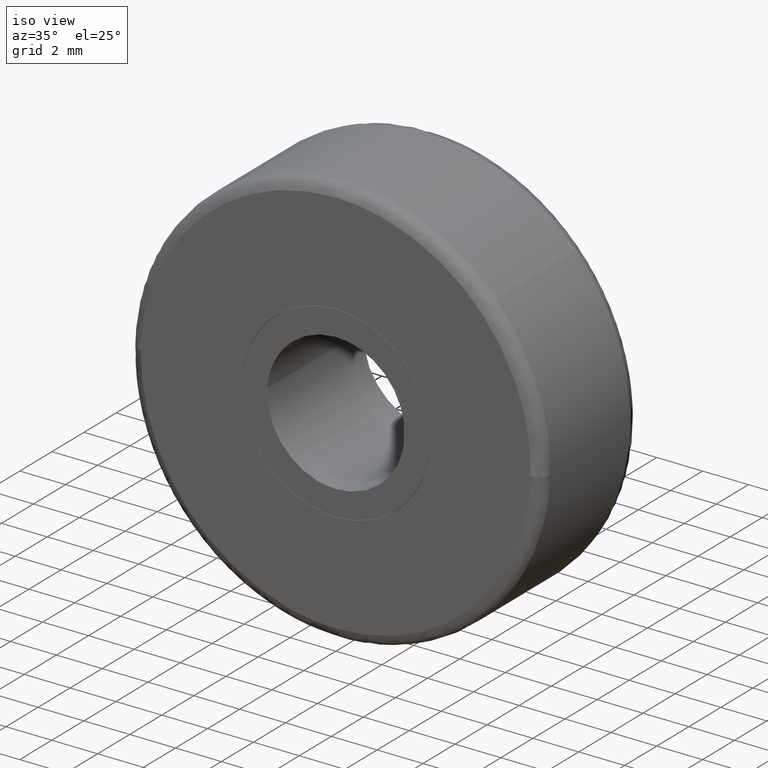
[diagram: clean part render]
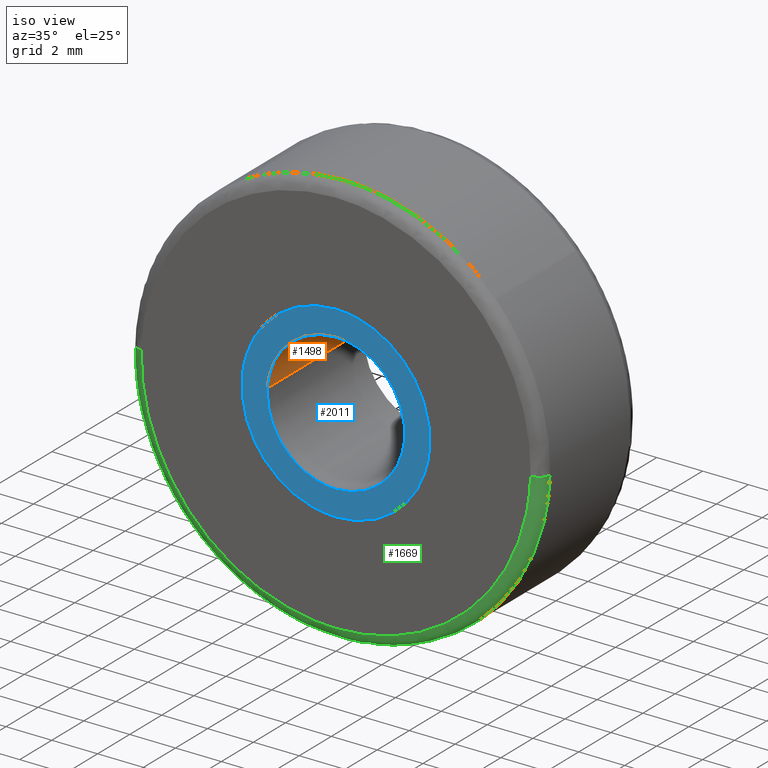
[diagram: same view with three faces highlighted in distinct colors, each labeled with its STEP entity id]
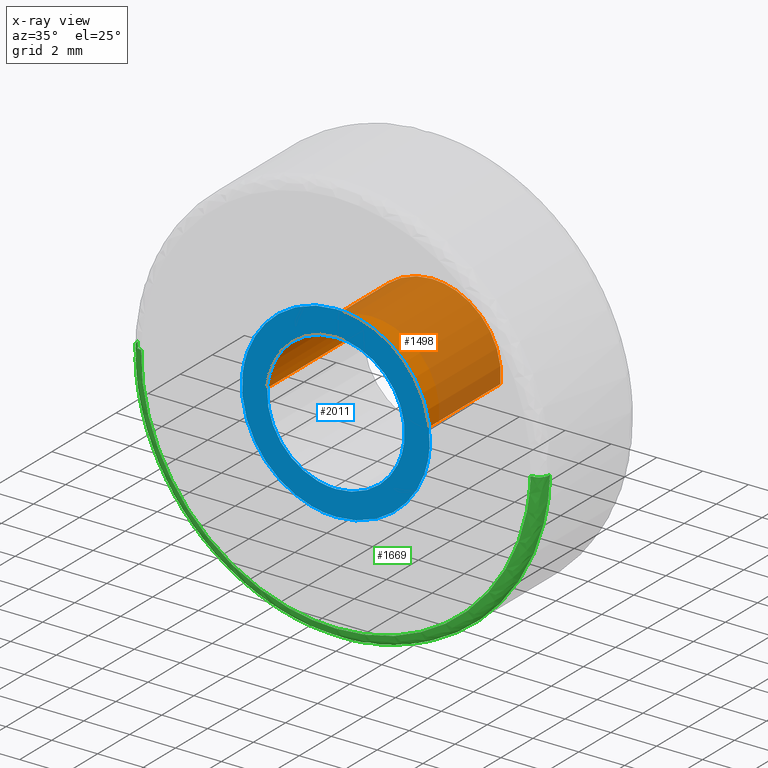
[diagram: x-ray of the same camera — body ghosted, the three highlighted faces saturated]
A machine part, iso view with three faces highlighted in distinct colors.
The next image is the same camera in x-ray (body ghosted, the three faces saturated) — at least one of them is partly hidden behind the body in this view.
Their STEP definitions:

[orange] entity #1498 — the highlighted face is a freeform B-spline surface patch.
#1396=CARTESIAN_POINT('',(2.979028579091000,6.150000000000001,-0.354102703970276));
#1397=CARTESIAN_POINT('',(2.989162846345817,6.150000000000001,-0.268844185913933));
#1398=CARTESIAN_POINT('',(2.994404395265600,6.150000000000001,-0.183145618604571));
#1399=CARTESIAN_POINT('',(3.177550013870171,6.150000000000002,2.811258776661029));
#1400=CARTESIAN_POINT('',(0.183145618604571,6.150000000000001,2.994404395265600));
#1401=CARTESIAN_POINT('',(-2.811258776661029,6.150000000000002,3.177550013870171));
#1402=CARTESIAN_POINT('',(-2.994404395265600,6.150000000000001,0.183145618604571));
#1403=CARTESIAN_POINT('',(2.979028579091000,-0.153750000000001,-0.354102703970276));
#1404=CARTESIAN_POINT('',(2.989162846345817,-0.153750000000001,-0.268844185913933));
#1405=CARTESIAN_POINT('',(2.994404395265600,-0.153750000000001,-0.183145618604571));
#1406=CARTESIAN_POINT('',(3.177550013870171,-0.153750000000001,2.811258776661029));
#1407=CARTESIAN_POINT('',(0.183145618604571,-0.153750000000001,2.994404395265600));
#1408=CARTESIAN_POINT('',(-2.811258776661029,-0.153750000000001,3.177550013870171));
#1409=CARTESIAN_POINT('',(-2.994404395265600,-0.153750000000001,0.183145618604571));
#1417=(BOUNDED_SURFACE()B_SPLINE_SURFACE(2,1,((#1396,#1403),(#1397,#1404),(#1398,#1405),(#1399,#1406),(#1400,#1407),(#1401,#1408),(#1402,#1409)),.UNSPECIFIED.,.F.,.F.,.U.)B_SPLINE_SURFACE_WITH_KNOTS((3,2,2,3),(2,2),(0.0,0.198822509939086,5.169385258416226,10.139948006893370),(0.0,6.303750000000004),.UNSPECIFIED.)GEOMETRIC_REPRESENTATION_ITEM()RATIONAL_B_SPLINE_SURFACE(((0.977505800795127,0.977505800795127),(0.988284271247462,0.988284271247462),(1.0,1.0),(0.707106781186548,0.707106781186548),(1.0,1.0),(0.707106781186548,0.707106781186548),(1.0,1.0)))REPRESENTATION_ITEM('')SURFACE());
#1418=CARTESIAN_POINT('',(2.979028579088887,5.999999999999999,-0.354102703988044));
#1419=VERTEX_POINT('',#1418);
#1420=CARTESIAN_POINT('',(0.0,6.0,3.0));
#1421=VERTEX_POINT('',#1420);
#1422=CARTESIAN_POINT('',(2.979028579088887,5.999999999999999,-0.354102703988044));
#1423=CARTESIAN_POINT('',(3.000000000000000,6.000000000000001,-0.177672358973687));
#1424=CARTESIAN_POINT('',(3.0,6.0,-1.775281E-016));
#1425=CARTESIAN_POINT('',(3.0,6.0,3.0));
#1426=CARTESIAN_POINT('',(0.0,6.0,3.0));
#1434=(BOUNDED_CURVE()B_SPLINE_CURVE(2,(#1422,#1423,#1424,#1425,#1426),.UNSPECIFIED.,.F.,.U.)B_SPLINE_CURVE_WITH_KNOTS((3,2,3),(0.229562473513628,0.250000000000000,0.500000000000000),.UNSPECIFIED.)CURVE()GEOMETRIC_REPRESENTATION_ITEM()RATIONAL_B_SPLINE_CURVE((0.956026754183934,0.976055948331286,1.0,0.707106781186548,1.0))REPRESENTATION_ITEM(''));
#1435=EDGE_CURVE('',#1419,#1421,#1434,.T.);
#1436=ORIENTED_EDGE('',*,*,#1435,.F.);
#1437=CARTESIAN_POINT('',(2.979028579088887,-5.026907E-016,-0.354102703988044));
#1438=VERTEX_POINT('',#1437);
#1439=CARTESIAN_POINT('',(2.979028579088887,5.999999999999999,-0.354102703988044));
#1440=CARTESIAN_POINT('',(2.979028579088887,-5.026907E-016,-0.354102703988044));
#1441=QUASI_UNIFORM_CURVE('',1,(#1439,#1440),.UNSPECIFIED.,.F.,.U.);
#1442=EDGE_CURVE('',#1419,#1438,#1441,.T.);
#1443=ORIENTED_EDGE('',*,*,#1442,.T.);
#1444=CARTESIAN_POINT('',(0.0,-5.510729E-016,3.0));
#1445=VERTEX_POINT('',#1444);
#1446=CARTESIAN_POINT('',(2.979028579088887,-5.026907E-016,-0.354102703988044));
#1447=CARTESIAN_POINT('',(3.000000000000000,-5.510729E-016,-0.177672358973687));
#1448=CARTESIAN_POINT('',(3.0,-5.510729E-016,-1.775281E-016));
#1449=CARTESIAN_POINT('',(3.0,-5.510729E-016,3.0));
#1450=CARTESIAN_POINT('',(0.0,-5.510729E-016,3.0));
#1458=(BOUNDED_CURVE()B_SPLINE_CURVE(2,(#1446,#1447,#1448,#1449,#1450),.UNSPECIFIED.,.F.,.U.)B_SPLINE_CURVE_WITH_KNOTS((3,2,3),(0.229562473513628,0.250000000000000,0.500000000000000),.UNSPECIFIED.)CURVE()GEOMETRIC_REPRESENTATION_ITEM()RATIONAL_B_SPLINE_CURVE((0.956026754183934,0.976055948331286,1.0,0.707106781186548,1.0))REPRESENTATION_ITEM(''));
#1459=EDGE_CURVE('',#1438,#1445,#1458,.T.);
#1460=ORIENTED_EDGE('',*,*,#1459,.T.);
#1461=CARTESIAN_POINT('',(-2.994404430591240,-5.253366E-016,0.183145041033635));
#1462=VERTEX_POINT('',#1461);
#1463=CARTESIAN_POINT('',(0.0,-5.510729E-016,3.0));
#1464=CARTESIAN_POINT('',(-2.822119291431257,-5.510729E-016,3.000000000000001));
#1465=CARTESIAN_POINT('',(-2.994404430591240,-5.253366E-016,0.183145041033635));
#1473=(BOUNDED_CURVE()B_SPLINE_CURVE(2,(#1463,#1464,#1465),.UNSPECIFIED.,.F.,.U.)B_SPLINE_CURVE_WITH_KNOTS((3,3),(0.500000000000000,0.739333028804800),.UNSPECIFIED.)CURVE()GEOMETRIC_REPRESENTATION_ITEM()RATIONAL_B_SPLINE_CURVE((1.0,0.719603915299957,0.976072184330063))REPRESENTATION_ITEM(''));
#1474=EDGE_CURVE('',#1445,#1462,#1473,.T.);
#1475=ORIENTED_EDGE('',*,*,#1474,.T.);
#1476=CARTESIAN_POINT('',(-2.994404431022851,6.000000000000001,0.183145033976828));
#1477=VERTEX_POINT('',#1476);
#1478=CARTESIAN_POINT('',(-2.994404431022851,6.000000000000001,0.183145033976828));
#1479=CARTESIAN_POINT('',(-2.994404430591240,-5.253366E-016,0.183145041033635));
#1480=QUASI_UNIFORM_CURVE('',1,(#1478,#1479),.UNSPECIFIED.,.F.,.U.);
#1481=EDGE_CURVE('',#1477,#1462,#1480,.T.);
#1482=ORIENTED_EDGE('',*,*,#1481,.F.);
#1483=CARTESIAN_POINT('',(0.0,6.0,3.0));
#1484=CARTESIAN_POINT('',(-2.822119304757682,6.0,3.0));
#1485=CARTESIAN_POINT('',(-2.994404431022851,6.000000000000001,0.183145033976828));
#1493=(BOUNDED_CURVE()B_SPLINE_CURVE(2,(#1483,#1484,#1485),.UNSPECIFIED.,.F.,.U.)B_SPLINE_CURVE_WITH_KNOTS((3,3),(0.500000000000000,0.739333029618070),.UNSPECIFIED.)CURVE()GEOMETRIC_REPRESENTATION_ITEM()RATIONAL_B_SPLINE_CURVE((1.0,0.719603914347153,0.976072186073055))REPRESENTATION_ITEM(''));
#1494=EDGE_CURVE('',#1421,#1477,#1493,.T.);
#1495=ORIENTED_EDGE('',*,*,#1494,.F.);
#1496=EDGE_LOOP('',(#1436,#1443,#1460,#1475,#1482,#1495));
#1497=FACE_OUTER_BOUND('',#1496,.T.);
#1498=ADVANCED_FACE('',(#1497),#1417,.F.);

[blue] entity #2011 — the highlighted face is a freeform B-spline surface patch.
#654=CARTESIAN_POINT('',(4.092352705097584,-1.318390E-016,-0.250298495960752));
#655=VERTEX_POINT('',#654);
#661=CARTESIAN_POINT('',(0.0,0.0,-4.100000000000001));
#662=VERTEX_POINT('',#661);
#663=CARTESIAN_POINT('',(0.0,0.0,-4.100000000000001));
#664=CARTESIAN_POINT('',(3.856895849003346,0.0,-4.100000000000001));
#665=CARTESIAN_POINT('',(4.092352705097584,-1.318390E-016,-0.250298495960752));
#673=(BOUNDED_CURVE()B_SPLINE_CURVE(2,(#663,#664,#665),.UNSPECIFIED.,.F.,.U.)B_SPLINE_CURVE_WITH_KNOTS((3,3),(0.500000000000000,0.739333005765563),.UNSPECIFIED.)CURVE()GEOMETRIC_REPRESENTATION_ITEM()RATIONAL_B_SPLINE_CURVE((1.0,0.719603942292103,0.976072134952568))REPRESENTATION_ITEM(''));
#674=EDGE_CURVE('',#662,#655,#673,.T.);
#676=CARTESIAN_POINT('',(-4.071339863821313,4.259142E-017,0.483933583472828));
#677=VERTEX_POINT('',#676);
#678=CARTESIAN_POINT('',(-4.071339863821313,4.259142E-017,0.483933583472828));
#679=CARTESIAN_POINT('',(-4.100000000000001,0.0,0.242815465432385));
#680=CARTESIAN_POINT('',(-4.100000000000001,0.0,0.0));
#681=CARTESIAN_POINT('',(-4.100000000000001,0.0,-4.100000000000001));
#682=CARTESIAN_POINT('',(0.0,0.0,-4.100000000000001));
#690=(BOUNDED_CURVE()B_SPLINE_CURVE(2,(#678,#679,#680,#681,#682),.UNSPECIFIED.,.F.,.U.)B_SPLINE_CURVE_WITH_KNOTS((3,2,3),(0.229562754899454,0.250000000000000,0.500000000000000),.UNSPECIFIED.)CURVE()GEOMETRIC_REPRESENTATION_ITEM()RATIONAL_B_SPLINE_CURVE((0.956027305712411,0.976056277995287,1.0,0.707106781186547,1.0))REPRESENTATION_ITEM(''));
#691=EDGE_CURVE('',#677,#662,#690,.T.);
#739=CARTESIAN_POINT('',(0.0,0.0,4.100000000000001));
#740=VERTEX_POINT('',#739);
#741=CARTESIAN_POINT('',(0.0,0.0,4.100000000000001));
#742=CARTESIAN_POINT('',(-3.641521662065990,0.0,4.100000000000001));
#743=CARTESIAN_POINT('',(-4.071339863821313,4.259142E-017,0.483933583472828));
#751=(BOUNDED_CURVE()B_SPLINE_CURVE(2,(#741,#742,#743),.UNSPECIFIED.,.F.,.U.)B_SPLINE_CURVE_WITH_KNOTS((3,3),(0.0,0.229562754899454),.UNSPECIFIED.)CURVE()GEOMETRIC_REPRESENTATION_ITEM()RATIONAL_B_SPLINE_CURVE((1.0,0.731050503191261,0.956027305712411))REPRESENTATION_ITEM(''));
#752=EDGE_CURVE('',#740,#677,#751,.T.);
#754=CARTESIAN_POINT('',(4.092352705097584,-1.318390E-016,-0.250298495960752));
#755=CARTESIAN_POINT('',(4.100000000000001,0.0,-0.125265811944874));
#756=CARTESIAN_POINT('',(4.100000000000001,0.0,0.0));
#757=CARTESIAN_POINT('',(4.100000000000001,0.0,4.100000000000001));
#758=CARTESIAN_POINT('',(0.0,0.0,4.100000000000001));
#766=(BOUNDED_CURVE()B_SPLINE_CURVE(2,(#754,#755,#756,#757,#758),.UNSPECIFIED.,.F.,.U.)B_SPLINE_CURVE_WITH_KNOTS((3,2,3),(0.739333005765564,0.750000000000000,1.0),.UNSPECIFIED.)CURVE()GEOMETRIC_REPRESENTATION_ITEM()RATIONAL_B_SPLINE_CURVE((0.976072134952570,0.987502838894446,1.0,0.707106781186547,1.0))REPRESENTATION_ITEM(''));
#767=EDGE_CURVE('',#655,#740,#766,.T.);
#1437=CARTESIAN_POINT('',(2.979028579088887,-5.026907E-016,-0.354102703988044));
#1438=VERTEX_POINT('',#1437);
#1444=CARTESIAN_POINT('',(0.0,-5.510729E-016,3.0));
#1445=VERTEX_POINT('',#1444);
#1446=CARTESIAN_POINT('',(2.979028579088887,-5.026907E-016,-0.354102703988044));
#1447=CARTESIAN_POINT('',(3.000000000000000,-5.510729E-016,-0.177672358973687));
#1448=CARTESIAN_POINT('',(3.0,-5.510729E-016,-1.775281E-016));
#1449=CARTESIAN_POINT('',(3.0,-5.510729E-016,3.0));
#1450=CARTESIAN_POINT('',(0.0,-5.510729E-016,3.0));
#1458=(BOUNDED_CURVE()B_SPLINE_CURVE(2,(#1446,#1447,#1448,#1449,#1450),.UNSPECIFIED.,.F.,.U.)B_SPLINE_CURVE_WITH_KNOTS((3,2,3),(0.229562473513628,0.250000000000000,0.500000000000000),.UNSPECIFIED.)CURVE()GEOMETRIC_REPRESENTATION_ITEM()RATIONAL_B_SPLINE_CURVE((0.956026754183934,0.976055948331286,1.0,0.707106781186548,1.0))REPRESENTATION_ITEM(''));
#1459=EDGE_CURVE('',#1438,#1445,#1458,.T.);
#1461=CARTESIAN_POINT('',(-2.994404430591240,-5.253366E-016,0.183145041033635));
#1462=VERTEX_POINT('',#1461);
#1463=CARTESIAN_POINT('',(0.0,-5.510729E-016,3.0));
#1464=CARTESIAN_POINT('',(-2.822119291431257,-5.510729E-016,3.000000000000001));
#1465=CARTESIAN_POINT('',(-2.994404430591240,-5.253366E-016,0.183145041033635));
#1473=(BOUNDED_CURVE()B_SPLINE_CURVE(2,(#1463,#1464,#1465),.UNSPECIFIED.,.F.,.U.)B_SPLINE_CURVE_WITH_KNOTS((3,3),(0.500000000000000,0.739333028804800),.UNSPECIFIED.)CURVE()GEOMETRIC_REPRESENTATION_ITEM()RATIONAL_B_SPLINE_CURVE((1.0,0.719603915299957,0.976072184330063))REPRESENTATION_ITEM(''));
#1474=EDGE_CURVE('',#1445,#1462,#1473,.T.);
#1548=CARTESIAN_POINT('',(0.0,-5.510729E-016,-3.0));
#1549=VERTEX_POINT('',#1548);
#1550=CARTESIAN_POINT('',(-2.994404430591241,-5.253366E-016,0.183145041033635));
#1551=CARTESIAN_POINT('',(-3.0,-5.510729E-016,0.091657710705388));
#1552=CARTESIAN_POINT('',(-3.0,-5.510729E-016,-1.775281E-016));
#1553=CARTESIAN_POINT('',(-3.0,-5.510729E-016,-3.0));
#1554=CARTESIAN_POINT('',(0.0,-5.510729E-016,-3.0));
#1562=(BOUNDED_CURVE()B_SPLINE_CURVE(2,(#1550,#1551,#1552,#1553,#1554),.UNSPECIFIED.,.F.,.U.)B_SPLINE_CURVE_WITH_KNOTS((3,2,3),(0.739333028804799,0.750000000000000,1.0),.UNSPECIFIED.)CURVE()GEOMETRIC_REPRESENTATION_ITEM()RATIONAL_B_SPLINE_CURVE((0.976072184330061,0.987502865886589,1.0,0.707106781186548,1.0))REPRESENTATION_ITEM(''));
#1563=EDGE_CURVE('',#1462,#1549,#1562,.T.);
#1565=CARTESIAN_POINT('',(0.0,-5.510729E-016,-3.0));
#1566=CARTESIAN_POINT('',(2.664523577822093,-5.510729E-016,-2.999999999999999));
#1567=CARTESIAN_POINT('',(2.979028579088887,-5.026907E-016,-0.354102703988044));
#1575=(BOUNDED_CURVE()B_SPLINE_CURVE(2,(#1565,#1566,#1567),.UNSPECIFIED.,.F.,.U.)B_SPLINE_CURVE_WITH_KNOTS((3,3),(0.0,0.229562473513628),.UNSPECIFIED.)CURVE()GEOMETRIC_REPRESENTATION_ITEM()RATIONAL_B_SPLINE_CURVE((1.0,0.731050832855262,0.956026754183934))REPRESENTATION_ITEM(''));
#1576=EDGE_CURVE('',#1549,#1438,#1575,.T.);
#1994=CARTESIAN_POINT('',(-4.509515721571322,-1.052693E-015,-4.509589907131077));
#1995=CARTESIAN_POINT('',(-4.509515721571322,-1.052693E-015,4.509590200385929));
#1996=CARTESIAN_POINT('',(4.509490208399170,-1.052693E-015,-4.509589907131077));
#1997=CARTESIAN_POINT('',(4.509490208399170,-1.052693E-015,4.509590200385929));
#1998=B_SPLINE_SURFACE_WITH_KNOTS('',1,1,((#1994,#1996),(#1995,#1997)),.UNSPECIFIED.,.F.,.F.,.U.,(2,2),(2,2),(0.0,9.019180107517006),(0.0,9.019005929970493),.UNSPECIFIED.);
#1999=ORIENTED_EDGE('',*,*,#752,.T.);
#2000=ORIENTED_EDGE('',*,*,#691,.T.);
#2001=ORIENTED_EDGE('',*,*,#674,.T.);
#2002=ORIENTED_EDGE('',*,*,#767,.T.);
#2003=EDGE_LOOP('',(#1999,#2000,#2001,#2002));
#2004=FACE_OUTER_BOUND('',#2003,.T.);
#2005=ORIENTED_EDGE('',*,*,#1474,.F.);
#2006=ORIENTED_EDGE('',*,*,#1459,.F.);
#2007=ORIENTED_EDGE('',*,*,#1576,.F.);
#2008=ORIENTED_EDGE('',*,*,#1563,.F.);
#2009=EDGE_LOOP('',(#2005,#2006,#2007,#2008));
#2010=FACE_BOUND('',#2009,.T.);
#2011=ADVANCED_FACE('',(#2004,#2010),#1998,.F.);

[green] entity #1669 — the highlighted face is a freeform B-spline surface patch.
#1180=CARTESIAN_POINT('',(-8.997157703549693,0.499999999893819,0.226170858990283));
#1181=VERTEX_POINT('',#1180);
#1271=CARTESIAN_POINT('',(8.997157703549693,0.499999999893819,-0.226170858990280));
#1272=VERTEX_POINT('',#1271);
#1288=CARTESIAN_POINT('',(0.0,0.500000000000000,-9.0));
#1289=VERTEX_POINT('',#1288);
#1290=CARTESIAN_POINT('',(0.0,0.500000000000000,-9.0));
#1291=CARTESIAN_POINT('',(8.776600885625372,0.500000000000000,-9.000000000000002));
#1292=CARTESIAN_POINT('',(8.997157703549693,0.499999999893819,-0.226170858990280));
#1300=(BOUNDED_CURVE()B_SPLINE_CURVE(2,(#1290,#1291,#1292),.UNSPECIFIED.,.F.,.U.)B_SPLINE_CURVE_WITH_KNOTS((3,3),(0.0,0.245579891769798),.UNSPECIFIED.)CURVE()GEOMETRIC_REPRESENTATION_ITEM()RATIONAL_B_SPLINE_CURVE((1.0,0.712285260094738,0.989826157681555))REPRESENTATION_ITEM(''));
#1301=EDGE_CURVE('',#1289,#1272,#1300,.T.);
#1303=CARTESIAN_POINT('',(-8.997157703549693,0.499999999893819,0.226170858990282));
#1304=CARTESIAN_POINT('',(-8.999999999999998,0.500000000000000,0.113103289110661));
#1305=CARTESIAN_POINT('',(-9.0,0.500000000000000,-1.775281E-016));
#1306=CARTESIAN_POINT('',(-9.0,0.500000000000000,-9.0));
#1307=CARTESIAN_POINT('',(0.0,0.500000000000000,-9.0));
#1315=(BOUNDED_CURVE()B_SPLINE_CURVE(2,(#1303,#1304,#1305,#1306,#1307),.UNSPECIFIED.,.F.,.U.)B_SPLINE_CURVE_WITH_KNOTS((3,2,3),(0.745579891769798,0.750000000000000,1.0),.UNSPECIFIED.)CURVE()GEOMETRIC_REPRESENTATION_ITEM()RATIONAL_B_SPLINE_CURVE((0.989826157681555,0.994821521091809,1.0,0.707106781186547,1.0))REPRESENTATION_ITEM(''));
#1316=EDGE_CURVE('',#1181,#1289,#1315,.T.);
#1582=CARTESIAN_POINT('',(-8.995941240721491,0.534862105568240,0.226140279505733));
#1583=CARTESIAN_POINT('',(-9.222081520227228,0.534862105568240,-8.769800961215756));
#1584=CARTESIAN_POINT('',(-0.226140279505735,0.534862105568240,-8.995941240721491));
#1585=CARTESIAN_POINT('',(8.769800961215756,0.534862105568240,-9.222081520227228));
#1586=CARTESIAN_POINT('',(8.995941240721491,0.534862105568240,-0.226140279505736));
#1587=CARTESIAN_POINT('',(-9.036015084912998,-0.038668164525567,0.227147657175711));
#1588=CARTESIAN_POINT('',(-9.263162742088710,-0.038668164525567,-8.808867427737285));
#1589=CARTESIAN_POINT('',(-0.227147657175713,-0.038668164525567,-9.036015084912998));
#1590=CARTESIAN_POINT('',(8.808867427737285,-0.038668164525567,-9.263162742088710));
#1591=CARTESIAN_POINT('',(9.036015084912998,-0.038668164525567,-0.227147657175714));
#1592=CARTESIAN_POINT('',(-8.462650994845170,0.001203844047027,0.212734411010923));
#1593=CARTESIAN_POINT('',(-8.675385405856090,0.001203844047027,-8.249916583834240));
#1594=CARTESIAN_POINT('',(-0.212734411010925,0.001203844047027,-8.462650994845170));
#1595=CARTESIAN_POINT('',(8.249916583834240,0.001203844047027,-8.675385405856090));
#1596=CARTESIAN_POINT('',(8.462650994845170,0.001203844047027,-0.212734411010925));
#1604=(BOUNDED_SURFACE()B_SPLINE_SURFACE(2,2,((#1582,#1587,#1592),(#1583,#1588,#1593),(#1584,#1589,#1594),(#1585,#1590,#1595),(#1586,#1591,#1596)),.UNSPECIFIED.,.F.,.F.,.U.)B_SPLINE_SURFACE_WITH_KNOTS((3,2,3),(3,3),(0.0,14.909672107107070,29.819344214214130),(0.0,0.911185514946654),.UNSPECIFIED.)GEOMETRIC_REPRESENTATION_ITEM()RATIONAL_B_SPLINE_SURFACE(((0.910892952360089,0.599412813200208,0.915966855740547),(0.644098583548854,0.423848864943973,0.647686375036261),(0.910892952360089,0.599412813200208,0.915966855740547),(0.644098583548854,0.423848864943973,0.647686375036261),(0.910892952360089,0.599412813200208,0.915966855740547)))REPRESENTATION_ITEM('')SURFACE());
#1605=CARTESIAN_POINT('',(-8.497315609189514,-6.834411E-016,0.213605811287280));
#1606=VERTEX_POINT('',#1605);
#1607=CARTESIAN_POINT('',(0.0,-1.554312E-015,-8.500000000000000));
#1608=VERTEX_POINT('',#1607);
#1609=CARTESIAN_POINT('',(-8.497315609189512,-6.834411E-016,0.213605811287280));
#1610=CARTESIAN_POINT('',(-8.500000000000000,-1.554312E-015,0.106819773060561));
#1611=CARTESIAN_POINT('',(-8.500000000000000,-1.554312E-015,-1.775281E-016));
#1612=CARTESIAN_POINT('',(-8.500000000000002,-1.554312E-015,-8.500000000000002));
#1613=CARTESIAN_POINT('',(0.0,-1.554312E-015,-8.500000000000000));
#1621=(BOUNDED_CURVE()B_SPLINE_CURVE(2,(#1609,#1610,#1611,#1612,#1613),.UNSPECIFIED.,.F.,.U.)B_SPLINE_CURVE_WITH_KNOTS((3,2,3),(0.745579891769320,0.750000000000000,1.0),.UNSPECIFIED.)CURVE()GEOMETRIC_REPRESENTATION_ITEM()RATIONAL_B_SPLINE_CURVE((0.989826157680475,0.994821521091250,1.0,0.707106781186548,1.0))REPRESENTATION_ITEM(''));
#1622=EDGE_CURVE('',#1606,#1608,#1621,.T.);
#1623=ORIENTED_EDGE('',*,*,#1622,.F.);
#1624=CARTESIAN_POINT('',(-8.997157703549693,0.499999999893819,0.226170858990282));
#1625=CARTESIAN_POINT('',(-8.997157703337406,5.637052E-010,0.226170858984701));
#1626=CARTESIAN_POINT('',(-8.497315609189514,-6.834411E-016,0.213605811287280));
#1634=(BOUNDED_CURVE()B_SPLINE_CURVE(2,(#1624,#1625,#1626),.UNSPECIFIED.,.F.,.U.)B_SPLINE_CURVE_WITH_KNOTS((3,3),(-1.723441281547478,-0.263586880094658),.UNSPECIFIED.)CURVE()GEOMETRIC_REPRESENTATION_ITEM()RATIONAL_B_SPLINE_CURVE((0.883897566984544,0.626638727521603,0.888510408643934))REPRESENTATION_ITEM(''));
#1635=EDGE_CURVE('',#1181,#1606,#1634,.T.);
#1636=ORIENTED_EDGE('',*,*,#1635,.F.);
#1637=ORIENTED_EDGE('',*,*,#1316,.T.);
#1638=ORIENTED_EDGE('',*,*,#1301,.T.);
#1639=CARTESIAN_POINT('',(8.497315609189515,-6.834411E-016,-0.213605811287280));
#1640=VERTEX_POINT('',#1639);
#1641=CARTESIAN_POINT('',(8.997157703549693,0.499999999893819,-0.226170858990280));
#1642=CARTESIAN_POINT('',(8.997157703337406,5.637068E-010,-0.226170858984700));
#1643=CARTESIAN_POINT('',(8.497315609189515,-6.834411E-016,-0.213605811287280));
#1651=(BOUNDED_CURVE()B_SPLINE_CURVE(2,(#1641,#1642,#1643),.UNSPECIFIED.,.F.,.U.)B_SPLINE_CURVE_WITH_KNOTS((3,3),(-1.723441281547478,-0.263586880094661),.UNSPECIFIED.)CURVE()GEOMETRIC_REPRESENTATION_ITEM()RATIONAL_B_SPLINE_CURVE((0.883897566984544,0.626638727521603,0.888510408643933))REPRESENTATION_ITEM(''));
#1652=EDGE_CURVE('',#1272,#1640,#1651,.T.);
#1653=ORIENTED_EDGE('',*,*,#1652,.T.);
#1654=CARTESIAN_POINT('',(0.0,-1.554312E-015,-8.500000000000000));
#1655=CARTESIAN_POINT('',(8.289011947512430,-1.554312E-015,-8.500000000000000));
#1656=CARTESIAN_POINT('',(8.497315609189515,-6.834411E-016,-0.213605811287280));
#1664=(BOUNDED_CURVE()B_SPLINE_CURVE(2,(#1654,#1655,#1656),.UNSPECIFIED.,.F.,.U.)B_SPLINE_CURVE_WITH_KNOTS((3,3),(0.0,0.245579891769320),.UNSPECIFIED.)CURVE()GEOMETRIC_REPRESENTATION_ITEM()RATIONAL_B_SPLINE_CURVE((1.0,0.712285260095298,0.989826157680475))REPRESENTATION_ITEM(''));
#1665=EDGE_CURVE('',#1608,#1640,#1664,.T.);
#1666=ORIENTED_EDGE('',*,*,#1665,.F.);
#1667=EDGE_LOOP('',(#1623,#1636,#1637,#1638,#1653,#1666));
#1668=FACE_OUTER_BOUND('',#1667,.T.);
#1669=ADVANCED_FACE('',(#1668),#1604,.T.);